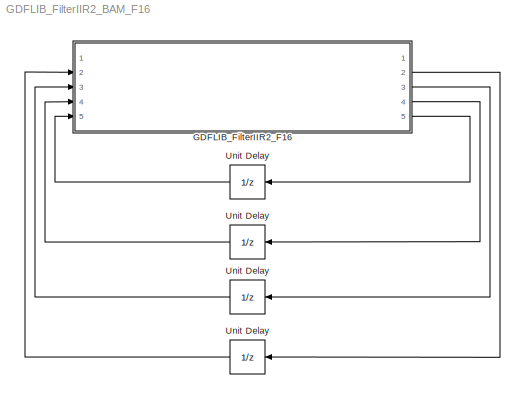
MODEL GDFLIB_FilterIIR2_BAM_F16
KIND model
BLOCK [UnitDelay]  Unit Delay
  SID = 1
  SampleTime = -1
BLOCK [UnitDelay]  Unit Delay 
  SID = 2
  SampleTime = -1
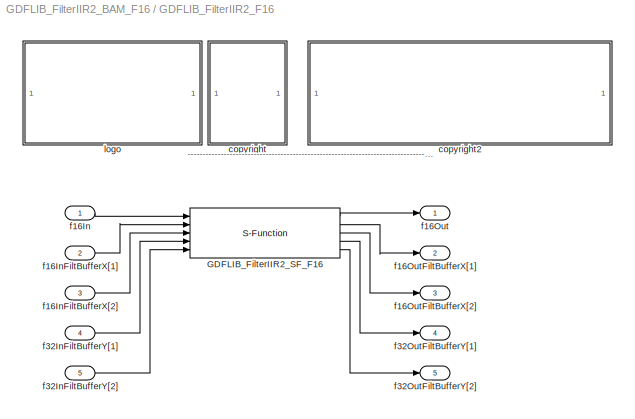
BLOCK [SubSystem] GDFLIB_FilterIIR2_F16
  Ports = [5, 5]
  RequestExecContextInheritance = off
  SID = 3
BLOCK [S-Function] GDFLIB_FilterIIR2_F16/GDFLIB_FilterIIR2_SF_F16
  EnableBusSupport = off
  FunctionName = GDFLIB_FilterIIR2_SF_F16
  Parameters = f16B0,f16B1,f16B2,f16A1,f16A2
  Ports = [5, 5]
  SID = 9
BLOCK [SubSystem] GDFLIB_FilterIIR2_F16/<copyright redacted>
  Ports = []
  RequestExecContextInheritance = off
  SID = 10
BLOCK [SubSystem] GDFLIB_FilterIIR2_F16/copyright2
  Ports = []
  RequestExecContextInheritance = off
  SID = 11
BLOCK [Inport] GDFLIB_FilterIIR2_F16/f16In
  IconDisplay = Port number
  SID = 4
BLOCK [Inport] GDFLIB_FilterIIR2_F16/f16InFiltBufferX[1]
  IconDisplay = Port number
  Port = 2
  SID = 5
BLOCK [Inport] GDFLIB_FilterIIR2_F16/f16InFiltBufferX[2]
  IconDisplay = Port number
  Port = 3
  SID = 6
BLOCK [Outport] GDFLIB_FilterIIR2_F16/f16Out
  IconDisplay = Port number
  SID = 13
BLOCK [Outport] GDFLIB_FilterIIR2_F16/f16OutFiltBufferX[1]
  IconDisplay = Port number
  Port = 2
  SID = 14
BLOCK [Outport] GDFLIB_FilterIIR2_F16/f16OutFiltBufferX[2]
  IconDisplay = Port number
  Port = 3
  SID = 15
BLOCK [Inport] GDFLIB_FilterIIR2_F16/f32InFiltBufferY[1]
  IconDisplay = Port number
  Port = 4
  SID = 7
BLOCK [Inport] GDFLIB_FilterIIR2_F16/f32InFiltBufferY[2]
  IconDisplay = Port number
  Port = 5
  SID = 8
BLOCK [Outport] GDFLIB_FilterIIR2_F16/f32OutFiltBufferY[1]
  IconDisplay = Port number
  Port = 4
  SID = 16
BLOCK [Outport] GDFLIB_FilterIIR2_F16/f32OutFiltBufferY[2]
  IconDisplay = Port number
  Port = 5
  SID = 17
BLOCK [SubSystem] GDFLIB_FilterIIR2_F16/logo
  Ports = []
  RequestExecContextInheritance = off
  SID = 12
BLOCK [UnitDelay] Unit Delay
  SID = 19
  SampleTime = -1
BLOCK [UnitDelay] Unit Delay 
  SID = 20
  SampleTime = -1
ANNOTATION GDFLIB_FilterIIR2_F16: ---------------------------------------------------------------------------------------------------------------------------------------------------------------------------------------------------
LINE  Unit Delay :1 -> GDFLIB_FilterIIR2_F16:2
LINE  Unit Delay:1 -> GDFLIB_FilterIIR2_F16:3
LINE GDFLIB_FilterIIR2_F16/GDFLIB_FilterIIR2_SF_F16:1 -> GDFLIB_FilterIIR2_F16/f16Out:1
LINE GDFLIB_FilterIIR2_F16/GDFLIB_FilterIIR2_SF_F16:2 -> GDFLIB_FilterIIR2_F16/f16OutFiltBufferX[1]:1
LINE GDFLIB_FilterIIR2_F16/GDFLIB_FilterIIR2_SF_F16:3 -> GDFLIB_FilterIIR2_F16/f16OutFiltBufferX[2]:1
LINE GDFLIB_FilterIIR2_F16/GDFLIB_FilterIIR2_SF_F16:4 -> GDFLIB_FilterIIR2_F16/f32OutFiltBufferY[1]:1
LINE GDFLIB_FilterIIR2_F16/GDFLIB_FilterIIR2_SF_F16:5 -> GDFLIB_FilterIIR2_F16/f32OutFiltBufferY[2]:1
LINE GDFLIB_FilterIIR2_F16/f16In:1 -> GDFLIB_FilterIIR2_F16/GDFLIB_FilterIIR2_SF_F16:1
LINE GDFLIB_FilterIIR2_F16/f16InFiltBufferX[1]:1 -> GDFLIB_FilterIIR2_F16/GDFLIB_FilterIIR2_SF_F16:2
LINE GDFLIB_FilterIIR2_F16/f16InFiltBufferX[2]:1 -> GDFLIB_FilterIIR2_F16/GDFLIB_FilterIIR2_SF_F16:3
LINE GDFLIB_FilterIIR2_F16/f32InFiltBufferY[1]:1 -> GDFLIB_FilterIIR2_F16/GDFLIB_FilterIIR2_SF_F16:4
LINE GDFLIB_FilterIIR2_F16/f32InFiltBufferY[2]:1 -> GDFLIB_FilterIIR2_F16/GDFLIB_FilterIIR2_SF_F16:5
LINE GDFLIB_FilterIIR2_F16:2 ->  Unit Delay :1
LINE GDFLIB_FilterIIR2_F16:3 ->  Unit Delay:1
LINE GDFLIB_FilterIIR2_F16:4 -> Unit Delay :1
LINE GDFLIB_FilterIIR2_F16:5 -> Unit Delay:1
LINE Unit Delay :1 -> GDFLIB_FilterIIR2_F16:4
LINE Unit Delay:1 -> GDFLIB_FilterIIR2_F16:5
